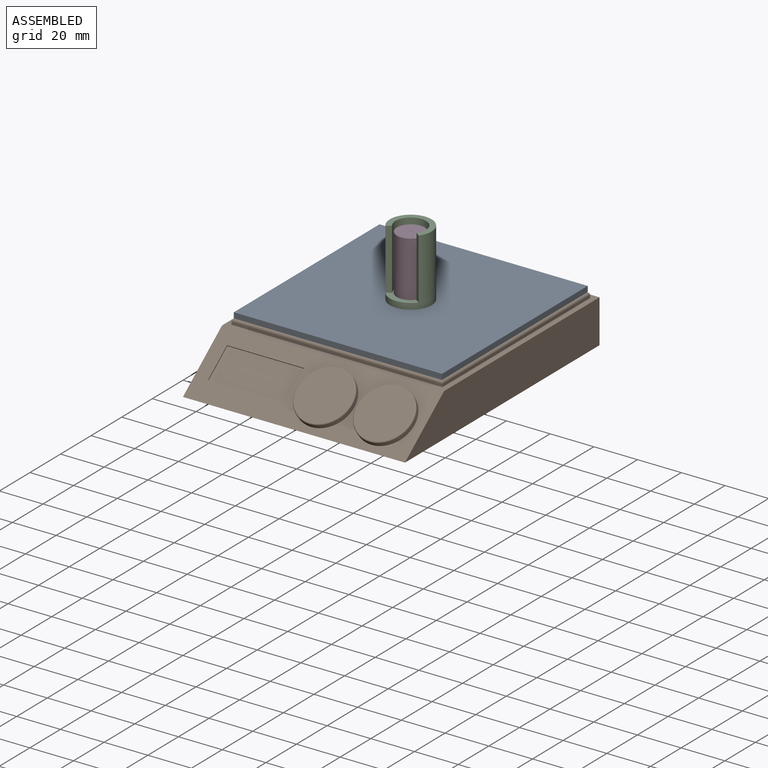
[diagram: assembled view]
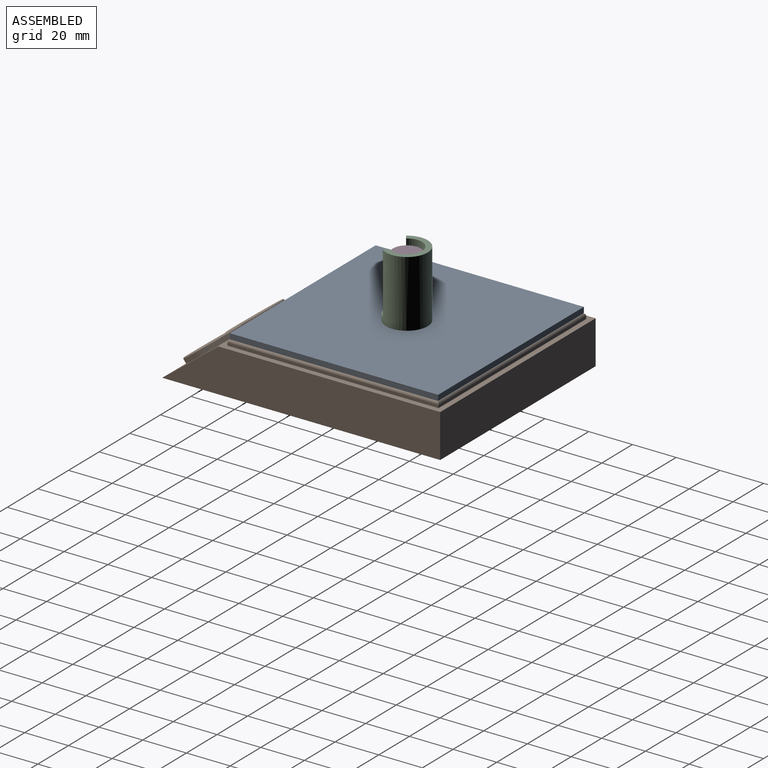
[diagram: assembled view, second angle]
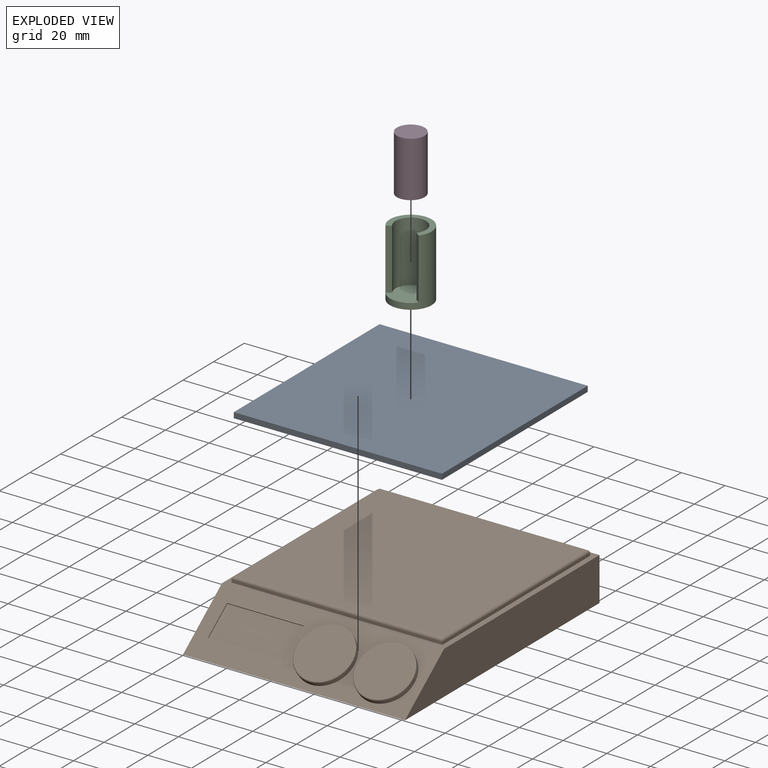
[diagram: exploded view]
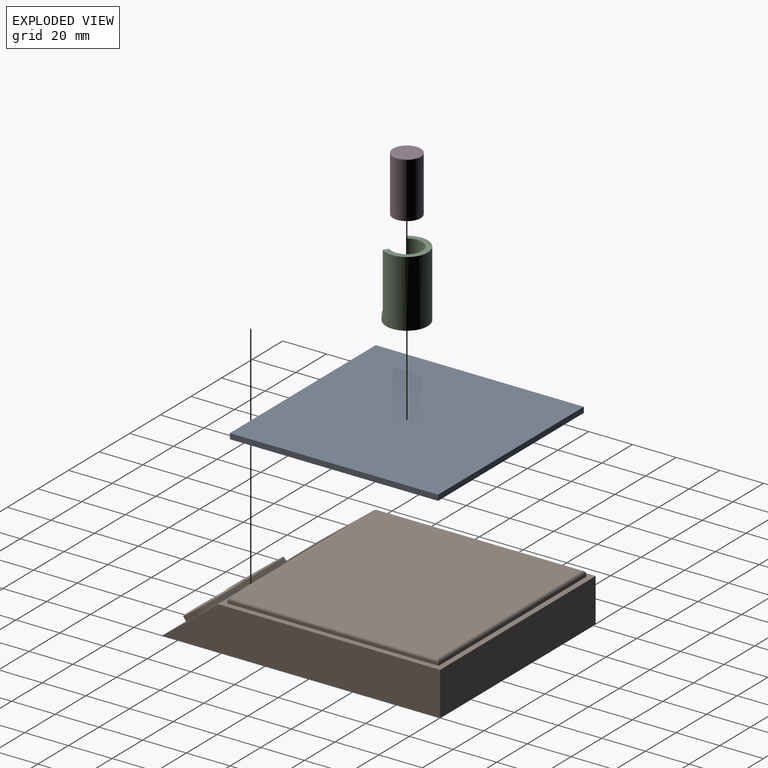
[diagram: exploded view, second angle]
ASSEMBLY  parts=4 mates=2
PART A: 6 faces, bbox 95.3x95.3x2.5 mm
  f0: plane 95.25x2.54mm, normal (0,-1,0), area 241.9mm2, adj f1,f3,f4,f5
  f1: plane 95.25x2.54mm, normal (1,0,0), area 241.9mm2, adj f0,f2,f4,f5
  f2: plane 95.25x2.54mm, normal (0,1,0), area 241.9mm2, adj f1,f3,f4,f5
  f3: plane 95.25x2.54mm, normal (-1,0,0), area 241.9mm2, adj f0,f2,f4,f5
  f4: plane 95.25x95.25mm, normal (0,0,1), area 9072.6mm2, adj f0,f1,f2,f3
  f5: plane 95.25x95.25mm, normal (0,0,-1), area 9072.6mm2, adj f0,f1,f2,f3
PART B: 26 faces, bbox 101.6x127.2x22.4 mm
  f0: plane 101.6x25.56mm, normal (0,-0.61,0.79), area 1721.3mm2, adj f1,f2,f4,f5,f15,f17,f21,f22
  f1: plane 101.6x101.6mm, normal (0,0,1), area 1006.4mm2, adj f0,f3,f4,f5,f6,f7,f8,f9
  f2: plane 127.16x101.6mm, normal (0,0,-1), area 12919.5mm2, adj f0,f3,f4,f5
  f3: plane 101.6x19.81mm, normal (0,1,0), area 2012.7mm2, adj f1,f2,f4,f5
  f4: plane 127.16x19.81mm, normal (1,0,0), area 2265.9mm2, adj f0,f1,f2,f3
  f5: plane 127.16x19.81mm, normal (-1,0,0), area 2265.9mm2, adj f0,f1,f2,f3
  f6: plane 96.52x1.27mm, normal (1,0,0), area 122.6mm2, adj f1,f7,f9,f11
  f7: plane 96.52x1.27mm, normal (0,1,0), area 122.6mm2, adj f1,f6,f8,f13
  f8: plane 96.52x1.27mm, normal (-1,0,0), area 122.6mm2, adj f1,f7,f9,f14
  f9: plane 96.52x1.27mm, normal (0,-1,0), area 122.6mm2, adj f1,f6,f8,f12
  f10: plane 93.98x93.98mm, normal (0,0,1), area 8832.2mm2, adj f11,f12,f13,f14
  f11: cylinder r=1.27mm len=96.52mm, axis (0,-1,0), area 190.7mm2, adj f6,f10,f12,f13
  f12: cylinder r=1.27mm len=96.52mm, axis (-1,0,0), area 190.7mm2, adj f9,f10,f11,f14
  f13: cylinder r=1.27mm len=96.52mm, axis (1,0,0), area 190.7mm2, adj f7,f10,f11,f14
  f14: cylinder r=1.27mm len=96.52mm, axis (0,1,0), area 190.7mm2, adj f8,f10,f12,f13
  f15: cylinder r=12.7mm len=25.4mm, axis (0,0.61,-0.79), area 162.1mm2, adj f0,f20
  f16: plane 24.38x19.27mm, normal (0,-0.61,0.79), area 467mm2, adj f20
  f17: cylinder r=12.7mm len=25.4mm, axis (0,0.61,-0.79), area 162.1mm2, adj f0,f19
  f18: plane 24.38x19.27mm, normal (0,-0.61,0.79), area 467mm2, adj f19
  f19: torus R=12.19mm, axis (0,-0.61,0.79), area 62.7mm2, adj f17,f18
  f20: torus R=12.19mm, axis (0,-0.61,0.79), area 62.7mm2, adj f15,f16
  f21: plane 35.3x0.4mm, normal (0,-0.79,-0.61), area 17.9mm2, adj f0,f22,f24,f25
  f22: plane 12.65x9.96mm, normal (1,0,0), area 7.9mm2, adj f0,f21,f23,f25
  f23: plane 35.3x0.4mm, normal (0,0.79,0.61), area 17.9mm2, adj f0,f22,f24,f25
  f24: plane 12.65x9.96mm, normal (-1,0,0), area 7.9mm2, adj f0,f21,f23,f25
  f25: plane 35.3x12.33mm, normal (0,-0.61,0.79), area 550.9mm2, adj f21,f22,f23,f24
PART C: 8 faces, bbox 19.1x19.1x30.5 mm
  f0: cylinder r=9.53mm len=30.48mm, axis (0,0,-1), area 1337.3mm2, adj f1,f3,f5,f6,f7
  f1: plane 19.05x15.27mm, normal (0,0,1), area 93mm2, adj f0,f2,f5,f6
  f2: cylinder r=6.99mm len=27.94mm, axis (0,0,-1), area 869.2mm2, adj f1,f4,f5,f6,f7
  f3: plane 19.05x19.05mm, normal (0,0,-1), area 285mm2, adj f0
  f4: plane 13.97x13.97mm, normal (0,0,1), area 153.3mm2, adj f2
  f5: plane 27.69x2.03mm, normal (-0.6,-0.8,0), area 70.3mm2, adj f0,f1,f2,f7
  f6: plane 27.69x2.03mm, normal (0.6,-0.8,0), area 70.3mm2, adj f0,f1,f2,f7
  f7: plane 15.19x5.31mm, normal (0,0,1), area 38.7mm2, adj f0,f2,f5,f6
PART D: 3 faces, bbox 12.7x12.7x25.4 mm
  f0: cylinder r=6.35mm len=25.4mm, axis (0,0,-1), area 1013.4mm2, adj f1,f2
  f1: plane 12.7x12.7mm, normal (0,0,1), area 126.7mm2, adj f0
  f2: plane 12.7x12.7mm, normal (0,0,-1), area 126.7mm2, adj f0
PLACE A t=(-6.38,-7.61,26.44)mm
PLACE B t=(-6.38,-3.19,4.09)mm
PLACE C t=(-6.38,-7.61,26.44)mm
PLACE D t=(-6.38,-7.61,31.52)mm
MATE fastened B.f10 <-> A.f5  axis (0,0,1) through (-6.38,-7.61,26.44)mm
MATE fastened D.f0 <-> C.f0  axis (0,0,-1) through (-6.38,-7.61,31.52)mm
